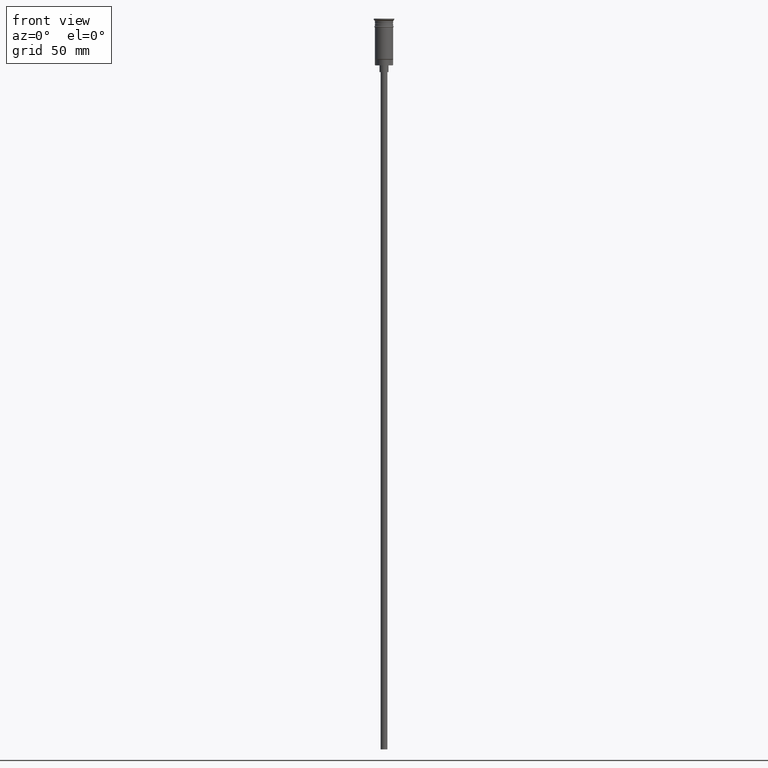
[diagram: clean part render]
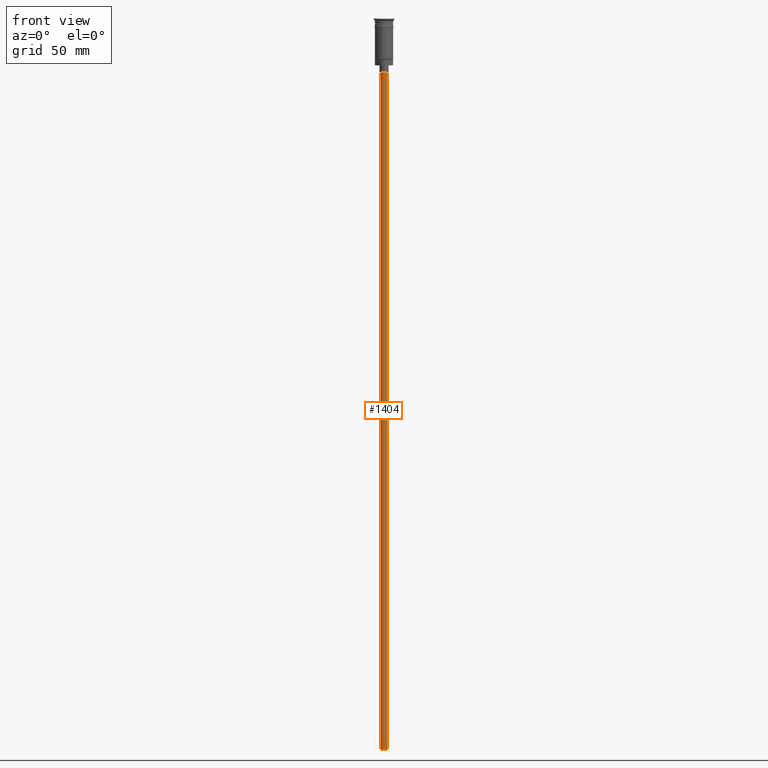
[diagram: same view with one face highlighted and labeled with its STEP entity id]
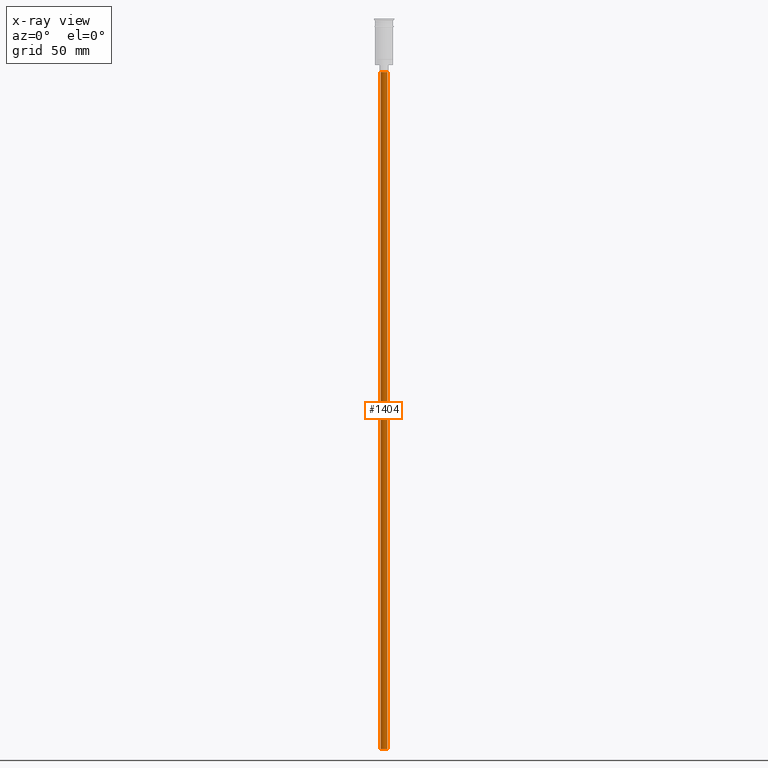
[diagram: x-ray of the same camera — body ghosted, the highlighted face saturated]
A machine part, front view. The second image highlights one B-rep face of the part: STEP entity #1404.
The next image is the same camera in x-ray: the body ghosted, the highlighted face saturated — about 0% of this face is hidden behind the body in this view.
In plain terms, the highlighted cylindrical surface (edge-blend (fillet) strip) has radius 1.5 mm, axis along (-0, -0, 1).
Its self-contained STEP definition (entity closure, byte-faithful):
#48 = DIRECTION ( 'NONE',  ( 0.000000000000000000, 0.000000000000000000, -1.000000000000000000 ) ) ;
#61 = FACE_OUTER_BOUND ( 'NONE', #1213, .T. ) ;
#79 = ORIENTED_EDGE ( 'NONE', *, *, #1067, .F. ) ;
#125 = ORIENTED_EDGE ( 'NONE', *, *, #1346, .T. ) ;
#302 = VERTEX_POINT ( 'NONE', #1329 ) ;
#356 = CARTESIAN_POINT ( 'NONE',  ( 1.500000000000000222, 0.000000000000000000, -320.5000000000000000 ) ) ;
#386 = CARTESIAN_POINT ( 'NONE',  ( 0.000000000000000000, 0.000000000000000000, -320.5000000000000000 ) ) ;
#439 = CIRCLE ( 'NONE', #652, 1.500000000000000222 ) ;
#519 = VECTOR ( 'NONE', #1564, 1000.000000000000000 ) ;
#551 = DIRECTION ( 'NONE',  ( -0.000000000000000000, -0.000000000000000000, 1.000000000000000000 ) ) ;
#567 = CARTESIAN_POINT ( 'NONE',  ( -1.500000000000000222, 1.836970198721030181E-16, -320.5000000000000000 ) ) ;
#652 = AXIS2_PLACEMENT_3D ( 'NONE', #1390, #48, #1295 ) ;
#657 = VERTEX_POINT ( 'NONE', #1410 ) ;
#759 = DIRECTION ( 'NONE',  ( 0.000000000000000000, 0.000000000000000000, -1.000000000000000000 ) ) ;
#764 = CARTESIAN_POINT ( 'NONE',  ( -1.500000000000000222, 1.836970198721030181E-16, -23.49999999999999645 ) ) ;
#796 = VERTEX_POINT ( 'NONE', #356 ) ;
#899 = CARTESIAN_POINT ( 'NONE',  ( 0.000000000000000000, 0.000000000000000000, -320.5000000000000000 ) ) ;
#901 = VERTEX_POINT ( 'NONE', #764 ) ;
#908 = DIRECTION ( 'NONE',  ( 1.000000000000000000, 0.000000000000000000, 0.000000000000000000 ) ) ;
#914 = CIRCLE ( 'NONE', #1125, 1.500000000000000222 ) ;
#939 = VECTOR ( 'NONE', #551, 1000.000000000000000 ) ;
#956 = EDGE_CURVE ( 'NONE', #796, #302, #914, .T. ) ;
#970 = LINE ( 'NONE', #567, #519 ) ;
#1051 = LINE ( 'NONE', #1521, #939 ) ;
#1067 = EDGE_CURVE ( 'NONE', #302, #901, #970, .T. ) ;
#1125 = AXIS2_PLACEMENT_3D ( 'NONE', #386, #759, #1363 ) ;
#1213 = EDGE_LOOP ( 'NONE', ( #79, #1584, #125, #1352 ) ) ;
#1284 = DIRECTION ( 'NONE',  ( -0.000000000000000000, -0.000000000000000000, 1.000000000000000000 ) ) ;
#1295 = DIRECTION ( 'NONE',  ( -1.000000000000000000, 0.000000000000000000, 0.000000000000000000 ) ) ;
#1329 = CARTESIAN_POINT ( 'NONE',  ( -1.500000000000000222, 1.836970198721030181E-16, -320.5000000000000000 ) ) ;
#1346 = EDGE_CURVE ( 'NONE', #796, #657, #1051, .T. ) ;
#1352 = ORIENTED_EDGE ( 'NONE', *, *, #1359, .T. ) ;
#1359 = EDGE_CURVE ( 'NONE', #657, #901, #439, .T. ) ;
#1363 = DIRECTION ( 'NONE',  ( -1.000000000000000000, 0.000000000000000000, 0.000000000000000000 ) ) ;
#1390 = CARTESIAN_POINT ( 'NONE',  ( 0.000000000000000000, 0.000000000000000000, -23.49999999999999645 ) ) ;
#1401 = AXIS2_PLACEMENT_3D ( 'NONE', #899, #1284, #908 ) ;
#1404 = ADVANCED_FACE ( 'NONE', ( #61 ), #1535, .T. ) ;
#1410 = CARTESIAN_POINT ( 'NONE',  ( 1.500000000000000222, 0.000000000000000000, -23.49999999999999645 ) ) ;
#1521 = CARTESIAN_POINT ( 'NONE',  ( 1.500000000000000222, 0.000000000000000000, -320.5000000000000000 ) ) ;
#1535 = CYLINDRICAL_SURFACE ( 'NONE', #1401, 1.500000000000000222 ) ;
#1564 = DIRECTION ( 'NONE',  ( -0.000000000000000000, -0.000000000000000000, 1.000000000000000000 ) ) ;
#1584 = ORIENTED_EDGE ( 'NONE', *, *, #956, .F. ) ;